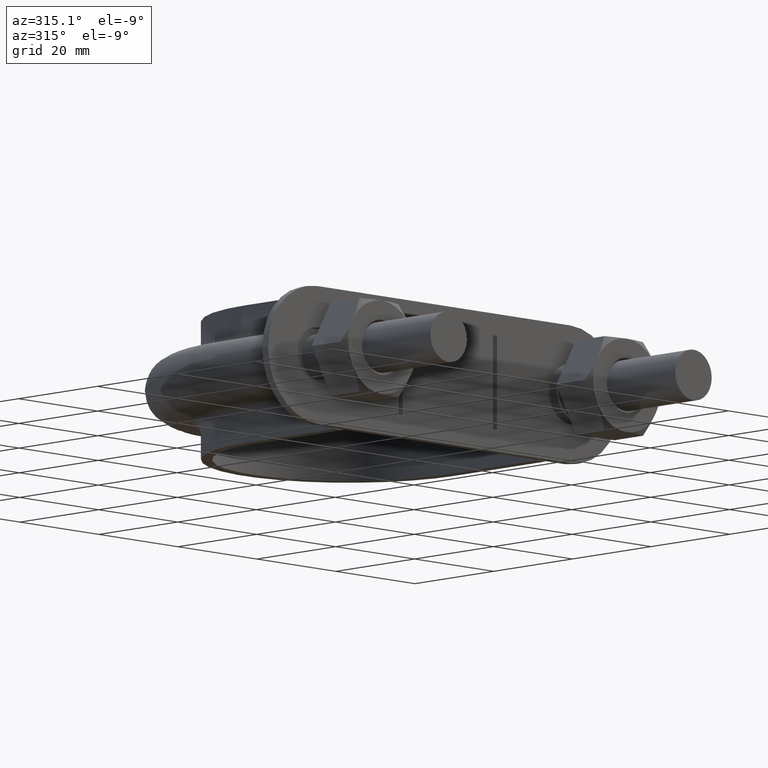
[diagram: clean part render]
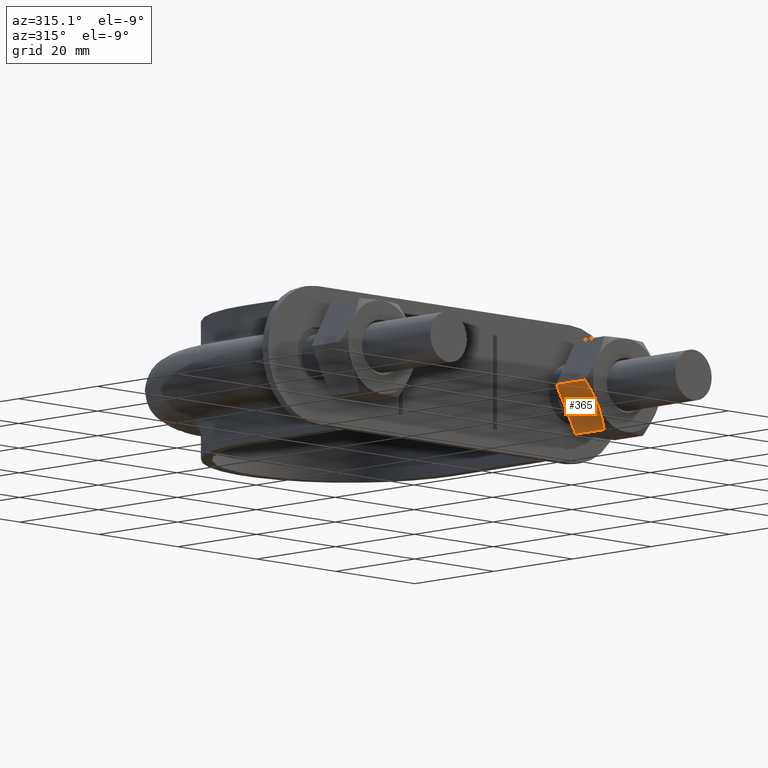
[diagram: same view with one face highlighted and labeled with its STEP entity id]
A machine part, auxiliary view. The second image highlights one B-rep face of the part: STEP entity #365.
In plain terms, the highlighted planar face has unit normal (0.866, -0, 0.5).
Its self-contained STEP definition (entity closure, byte-faithful):
#365 = ADVANCED_FACE( '', ( #605 ), #606, .F. );
#605 = FACE_OUTER_BOUND( '', #1687, .T. );
#606 = PLANE( '', #1688 );
#1687 = EDGE_LOOP( '', ( #2442, #2443, #2444, #2445, #2446 ) );
#1688 = AXIS2_PLACEMENT_3D( '', #2447, #2448, #2449 );
#2442 = ORIENTED_EDGE( '', *, *, #2764, .F. );
#2443 = ORIENTED_EDGE( '', *, *, #2769, .F. );
#2444 = ORIENTED_EDGE( '', *, *, #2763, .F. );
#2445 = ORIENTED_EDGE( '', *, *, #2760, .F. );
#2446 = ORIENTED_EDGE( '', *, *, #2770, .F. );
#2447 = CARTESIAN_POINT( '', ( 26.0925227119590, 25.0000000000000, -8.50000000003915 ) );
#2448 = DIRECTION( '', ( 0.866025403780351, -3.65183836638166E-016, 0.500000000007081 ) );
#2449 = DIRECTION( '', ( 0.500000000007081, 1.42674417626280E-016, -0.866025403780351 ) );
#2760 = EDGE_CURVE( '', #3146, #3128, #3148, .T. );
#2763 = EDGE_CURVE( '', #3128, #3149, #3153, .F. );
#2764 = EDGE_CURVE( '', #3106, #3154, #3155, .T. );
#2769 = EDGE_CURVE( '', #3149, #3106, #3161, .T. );
#2770 = EDGE_CURVE( '', #3154, #3146, #3162, .T. );
#3106 = VERTEX_POINT( '', #3914 );
#3128 = VERTEX_POINT( '', #3951 );
#3146 = VERTEX_POINT( '', #3973 );
#3148 = LINE( '', #3975, #3976 );
#3149 = VERTEX_POINT( '', #3977 );
#3153 = LINE( '', #3982, #3983 );
#3154 = VERTEX_POINT( '', #3984 );
#3155 = B_SPLINE_CURVE_WITH_KNOTS( '', 3, ( #3985, #3986, #3987, #3988, #3989, #3990, #3991, #3992 ), .UNSPECIFIED., .F., .F., ( 4, 2, 2, 4 ), ( 0.00493529902949323, 0.00616408349151717, 0.00739286795354111, 0.00985043687758899 ), .UNSPECIFIED. );
#3161 = B_SPLINE_CURVE_WITH_KNOTS( '', 3, ( #4009, #4010, #4011, #4012, #4013, #4014 ), .UNSPECIFIED., .F., .F., ( 4, 2, 4 ), ( 7.17194508351446E-007, 0.00246800811200079, 0.00493529902949323 ), .UNSPECIFIED. );
#3162 = LINE( '', #4015, #4016 );
#3914 = CARTESIAN_POINT( '', ( 23.6387840678679, 17.0000000000012, -4.25000000005970 ) );
#3951 = CARTESIAN_POINT( '', ( 21.2000343881814, 25.0000000000000, -0.0259616479814919 ) );
#3973 = CARTESIAN_POINT( '', ( 26.0775337475543, 25.0000000000000, -8.47403835213790 ) );
#3975 = CARTESIAN_POINT( '', ( 26.0887840679030, 25.0000000000000, -8.49352447858293 ) );
#3976 = VECTOR( '', #4390, 1000.00000000006 );
#3977 = CARTESIAN_POINT( '', ( 21.2000343881814, 17.7505553499476, -0.0259616479814967 ) );
#3982 = CARTESIAN_POINT( '', ( 21.2000343881814, 25.0000000000000, -0.0259616479814945 ) );
#3983 = VECTOR( '', #4395, 999.999999999950 );
#3984 = CARTESIAN_POINT( '', ( 26.0775337475543, 17.7505553499476, -8.47403835213790 ) );
#3985 = CARTESIAN_POINT( '', ( 23.6387840678684, 17.0000000000008, -4.25000000005932 ) );
#3986 = CARTESIAN_POINT( '', ( 23.8456388817468, 17.0000000000008, -4.60828304748012 ) );
#3987 = CARTESIAN_POINT( '', ( 24.0535274786755, 17.0177112141228, -4.96835665966818 ) );
#3988 = CARTESIAN_POINT( '', ( 24.4647835687089, 17.0863020976807, -5.68067310251459 ) );
#3989 = CARTESIAN_POINT( '', ( 24.6690446268814, 17.1371114863347, -6.03446363327049 ) );
#3990 = CARTESIAN_POINT( '', ( 25.2782179102820, 17.3331491064664, -7.08958271071390 ) );
#3991 = CARTESIAN_POINT( '', ( 25.6795336335009, 17.5218250443858, -7.78468193319221 ) );
#3992 = CARTESIAN_POINT( '', ( 26.0775337475543, 17.7505553499474, -8.47403835213793 ) );
#4009 = CARTESIAN_POINT( '', ( 21.2000343881825, 17.7505553499474, -0.0259616479808296 ) );
#4010 = CARTESIAN_POINT( '', ( 21.5990861549602, 17.5212206605164, -0.717139582876857 ) );
#4011 = CARTESIAN_POINT( '', ( 22.0010202481587, 17.3324529479813, -1.41330985357755 ) );
#4012 = CARTESIAN_POINT( '', ( 22.8131657095387, 17.0714150925767, -2.81998705579766 ) );
#4013 = CARTESIAN_POINT( '', ( 23.2234378299439, 17.0000000000008, -3.53059921325507 ) );
#4014 = CARTESIAN_POINT( '', ( 23.6387840678684, 17.0000000000008, -4.25000000005932 ) );
#4015 = CARTESIAN_POINT( '', ( 26.0775337475543, 25.0000000000000, -8.47403835213790 ) );
#4016 = VECTOR( '', #4400, 999.999999999950 );
#4390 = DIRECTION( '', ( -0.500000000007194, -1.42674417626232E-016, 0.866025403780285 ) );
#4395 = DIRECTION( '', ( 2.44921270764475E-016, 1.00000000000000, 3.06151588455594E-016 ) );
#4400 = DIRECTION( '', ( 2.44921270764475E-016, 1.00000000000000, 3.06151588455594E-016 ) );